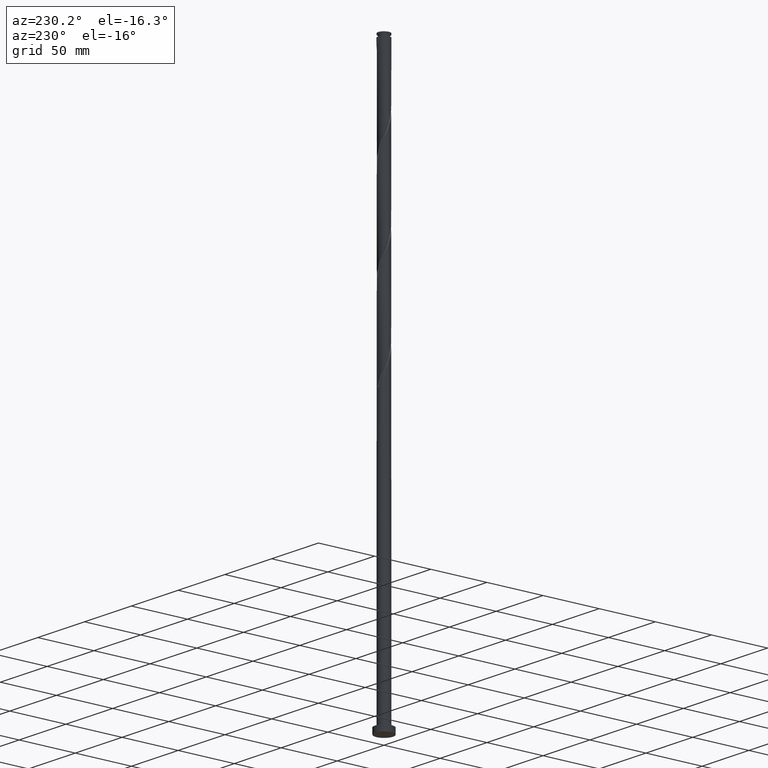
[diagram: clean part render]
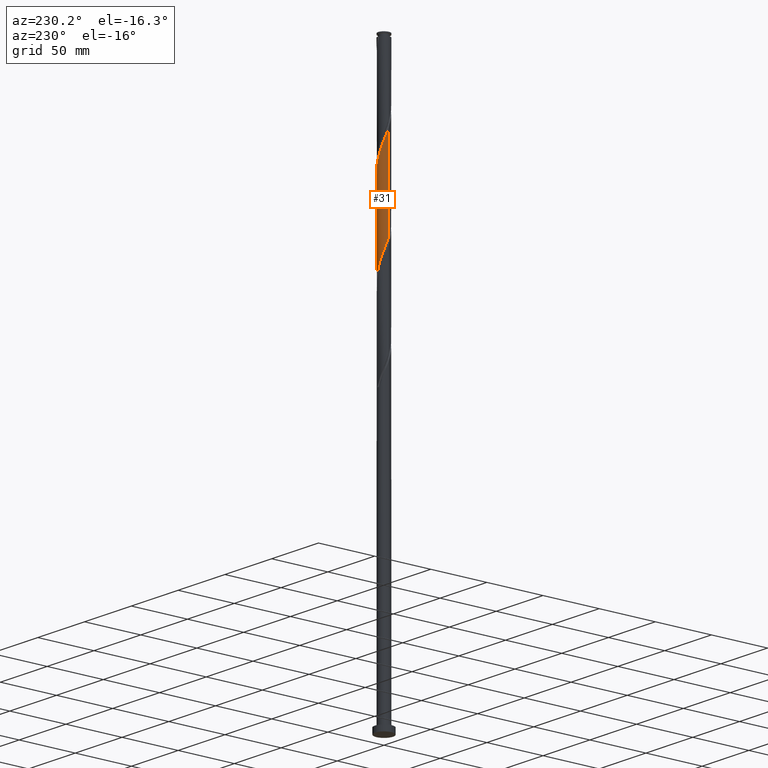
[diagram: same view with one face highlighted and labeled with its STEP entity id]
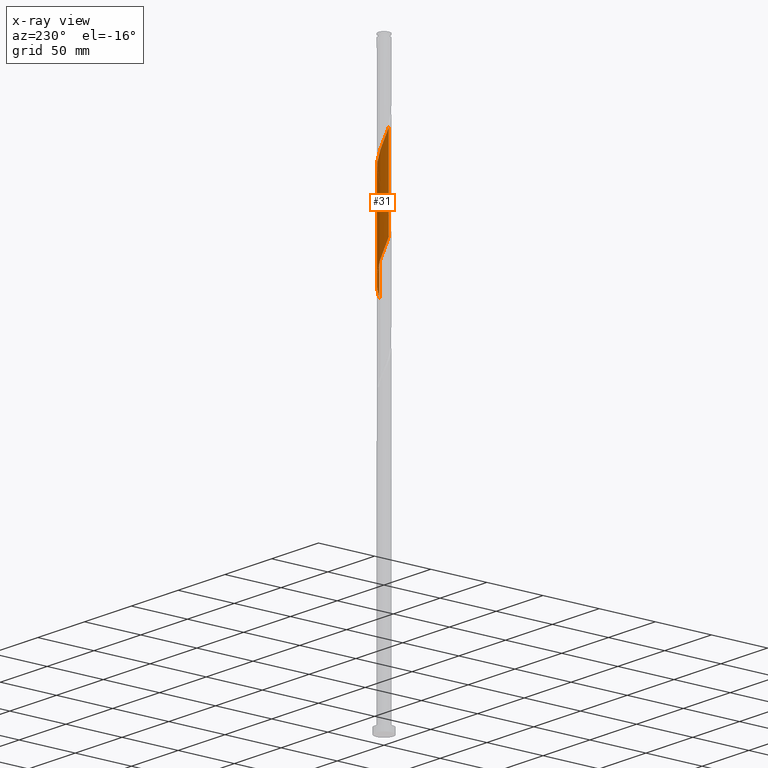
[diagram: x-ray of the same camera — body ghosted, the highlighted face saturated]
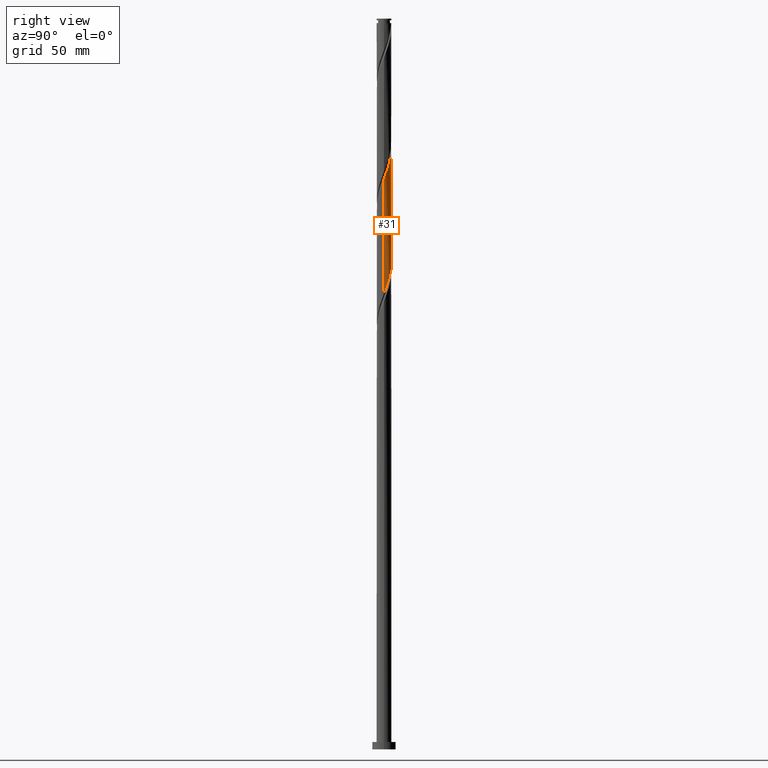
[diagram: same view with one face highlighted and labeled with its STEP entity id]
A machine part, auxiliary view. The second image highlights one B-rep face of the part: STEP entity #31.
The next image is the same camera in x-ray: the body ghosted, the highlighted face saturated — about 0% of this face is hidden behind the body in this view.
A second angle (right view) of the same face is appended — the face is thin or edge-on in the first view.
In plain terms, the highlighted cylindrical surface (edge-blend (fillet) strip) has radius 5.1 mm, axis along (-0, -0, -1).
Its self-contained STEP definition (entity closure, byte-faithful):
#4 = CARTESIAN_POINT ( 'NONE',  ( 4.719526232618723505, 1.932892169683482653, 317.2171342820045083 ) ) ;
#13 = CARTESIAN_POINT ( 'NONE',  ( 0.5226271518696500307, 5.097957663183446897, 331.5400509486711940 ) ) ;
#24 = CARTESIAN_POINT ( 'NONE',  ( 2.850285293774366568, 4.229169391747459095, 325.0296342820045083 ) ) ;
#31 = ADVANCED_FACE ( 'NONE', ( #980 ), #1615, .T. ) ;
#32 = CARTESIAN_POINT ( 'NONE',  ( -5.099999999999999645, 0.01016253220887840085, 353.7018110388170271 ) ) ;
#49 = VECTOR ( 'NONE', #1482, 1000.000000000000000 ) ;
#108 = EDGE_CURVE ( 'NONE', #1903, #2017, #1609, .T. ) ;
#114 = ORIENTED_EDGE ( 'NONE', *, *, #1116, .F. ) ;
#151 = EDGE_CURVE ( 'NONE', #1063, #1903, #530, .T. ) ;
#163 = CARTESIAN_POINT ( 'NONE',  ( 3.235247230719704437, 3.974353636958188218, 401.8525509486711940 ) ) ;
#174 = CARTESIAN_POINT ( 'NONE',  ( -5.100000000000001421, 0.000000000000000000, 500.0000000000000000 ) ) ;
#184 = CARTESIAN_POINT ( 'NONE',  ( 4.998000000000005549, 1.014887185848757145, 392.7379676153378227 ) ) ;
#190 = CARTESIAN_POINT ( 'NONE',  ( -4.509897990299586823, 2.433748465345991541, 347.1650509486711371 ) ) ;
#199 = CARTESIAN_POINT ( 'NONE',  ( 0.000000000000000000, 0.000000000000000000, 500.0000000000000000 ) ) ;
#206 =( BOUNDED_CURVE ( )  B_SPLINE_CURVE ( 2, ( #1487, #32, #1772, #213, #1795, #672, #1975, #190, #531, #1807, #521, #972, #1472, #1177, #1817, #351, #372, #990, #1605, #13, #1956, #851, #1496, #1480, #24, #650, #513, #1298, #1937, #1463, #4, #1308, #1185, #1841, #1031 ),
 .UNSPECIFIED., .F., .T. ) 
 B_SPLINE_CURVE_WITH_KNOTS ( ( 3, 2, 2, 2, 2, 2, 2, 2, 2, 2, 2, 2, 2, 2, 2, 2, 2, 3 ),
 ( 0.6795286902180894817, 0.6796875000000000000, 0.6875000000000000000, 0.6953125000000000000, 0.7031250000000000000, 0.7109375000000000000, 0.7187500000000000000, 0.7265625000000000000, 0.7343750000000000000, 0.7421875000000000000, 0.7500000000000000000, 0.7578125000000000000, 0.7656250000000000000, 0.7734375000000000000, 0.7812500000000000000, 0.7890625000000000000, 0.7968750000000000000, 0.8045286902180871502 ),
 .UNSPECIFIED. ) 
 CURVE ( )  GEOMETRIC_REPRESENTATION_ITEM ( )  RATIONAL_B_SPLINE_CURVE ( ( 0.9089165573359525574, 0.9090019243628562062, 0.9090909090909466972, 0.9047133878838528043, 0.9090909090909466972, 0.9047133878838528043, 0.9090909090909466972, 0.9047133878838528043, 0.9090909090909466972, 0.9047133878838528043, 0.9090909090909466972, 0.9047133878838528043, 0.9090909090909466972, 0.9047133878838528043, 0.9090909090909466972, 0.9047133878838528043, 0.9090909090909466972, 0.9047133878838528043, 0.9090909090909466972, 0.9047133878838528043, 0.9090909090909466972, 0.9047133878838528043, 0.9090909090909466972, 0.9047133878838528043, 0.9090909090909466972, 0.9047133878838528043, 0.9090909090909466972, 0.9047133878838528043, 0.9090909090909466972, 0.9047133878838528043, 0.9090909090909466972, 0.9047133878838528043, 0.9090909090909466972, 0.9048023726119447385, 0.9089165573359498929 ) ) 
 REPRESENTATION_ITEM ( '' )  );
#213 = CARTESIAN_POINT ( 'NONE',  ( -5.097957663183446897, 0.5226271518696499196, 352.3733842820045083 ) ) ;
#216 = ORIENTED_EDGE ( 'NONE', *, *, #108, .F. ) ;
#223 = CARTESIAN_POINT ( 'NONE',  ( 1.468059407851920684, 4.909899494948929188, 407.0608842820044515 ) ) ;
#233 = CARTESIAN_POINT ( 'NONE',  ( -4.909899494948929188, 1.468059407851920239, 427.8942176153377659 ) ) ;
#263 = VERTEX_POINT ( 'NONE', #1683 ) ;
#322 = CARTESIAN_POINT ( 'NONE',  ( 4.703970163558077289, 1.970447842586929843, 395.3421342820045083 ) ) ;
#344 = CARTESIAN_POINT ( 'NONE',  ( 5.097957663183454891, 0.5226271518696510299, 391.4358842820044515 ) ) ;
#351 = CARTESIAN_POINT ( 'NONE',  ( -1.468059407851916243, 4.909899494948922971, 336.7483842820044515 ) ) ;
#372 = CARTESIAN_POINT ( 'NONE',  ( -0.9750182961470735821, 5.005930415235359199, 335.4463009486710803 ) ) ;
#392 = CARTESIAN_POINT ( 'NONE',  ( -1.014887185848756701, 4.998000000000005549, 413.5713009486710803 ) ) ;
#402 = CARTESIAN_POINT ( 'NONE',  ( -0.5226271518696506968, 5.097957663183454891, 412.2692176153378227 ) ) ;
#513 = CARTESIAN_POINT ( 'NONE',  ( 3.620587879580457802, 3.591844011957518124, 322.4254676153378227 ) ) ;
#521 = CARTESIAN_POINT ( 'NONE',  ( -3.591844011957518124, 3.620587879580459134, 343.2588009486711940 ) ) ;
#523 = CARTESIAN_POINT ( 'NONE',  ( 0.4819771844422329754, 5.101961335521803420, 409.6650509486711371 ) ) ;
#530 =( BOUNDED_CURVE ( )  B_SPLINE_CURVE ( 2, ( #654, #2090, #1767, #344, #184, #1622, #322, #963, #1302, #1596, #1941, #163, #826, #1454, #2101, #223, #1515, #523, #1167, #402, #392, #1966, #1809, #1644, #1664, #701, #862, #709, #1355, #1674, #563, #233, #544, #1998, #1339 ),
 .UNSPECIFIED., .F., .T. ) 
 B_SPLINE_CURVE_WITH_KNOTS ( ( 3, 2, 2, 2, 2, 2, 2, 2, 2, 2, 2, 2, 2, 2, 2, 2, 2, 3 ),
 ( 0.4295286902180872057, 0.4296875000000000000, 0.4375000000000000000, 0.4453125000000000000, 0.4531250000000000000, 0.4609375000000000000, 0.4687500000000000000, 0.4765625000000000000, 0.4843750000000000000, 0.4921875000000000000, 0.5000000000000000000, 0.5078125000000000000, 0.5156250000000000000, 0.5234375000000000000, 0.5312500000000000000, 0.5390625000000000000, 0.5468750000000000000, 0.5545286902180874833 ),
 .UNSPECIFIED. ) 
 CURVE ( )  GEOMETRIC_REPRESENTATION_ITEM ( )  RATIONAL_B_SPLINE_CURVE ( ( 0.9089165573359566652, 0.9090019243628614243, 0.9090909090909532475, 0.9047133878838593546, 0.9090909090909532475, 0.9047133878838593546, 0.9090909090909532475, 0.9047133878838593546, 0.9090909090909532475, 0.9047133878838593546, 0.9090909090909532475, 0.9047133878838593546, 0.9090909090909532475, 0.9047133878838593546, 0.9090909090909532475, 0.9047133878838593546, 0.9090909090909532475, 0.9047133878838593546, 0.9090909090909532475, 0.9047133878838593546, 0.9090909090909532475, 0.9047133878838593546, 0.9090909090909532475, 0.9047133878838593546, 0.9090909090909532475, 0.9047133878838593546, 0.9090909090909532475, 0.9047133878838593546, 0.9090909090909532475, 0.9047133878838593546, 0.9090909090909532475, 0.9047133878838593546, 0.9090909090909532475, 0.9048023726119510668, 0.9089165573359568873 ) ) 
 REPRESENTATION_ITEM ( '' )  );
#531 = CARTESIAN_POINT ( 'NONE',  ( -4.229169391747461759, 2.850285293774363016, 345.8629676153378796 ) ) ;
#544 = CARTESIAN_POINT ( 'NONE',  ( -5.005930415235366304, 0.9750182961470761356, 429.1963009486710803 ) ) ;
#563 = CARTESIAN_POINT ( 'NONE',  ( -4.719526232618731498, 1.932892169683488426, 426.5921342820045083 ) ) ;
#588 = CARTESIAN_POINT ( 'NONE',  ( -5.100000000000010303, -2.355881046919246659E-15, 431.7477706373409774 ) ) ;
#650 = CARTESIAN_POINT ( 'NONE',  ( 3.266822122202736267, 3.948440793195335807, 323.7275509486711371 ) ) ;
#654 = CARTESIAN_POINT ( 'NONE',  ( 5.100000000000010303, -6.620323954633833192E-15, 390.0811039706741212 ) ) ;
#660 = CARTESIAN_POINT ( 'NONE',  ( 5.100000000000001421, 6.245698675651502811E-16, 500.0000000000000000 ) ) ;
#672 = CARTESIAN_POINT ( 'NONE',  ( -4.898042336816550879, 1.507147219827864371, 349.7692176153377659 ) ) ;
#701 = CARTESIAN_POINT ( 'NONE',  ( -3.266822122202741152, 3.948440793195344689, 420.0817176153377659 ) ) ;
#709 = CARTESIAN_POINT ( 'NONE',  ( -3.974353636958188218, 3.235247230719705769, 422.6858842820044515 ) ) ;
#826 = CARTESIAN_POINT ( 'NONE',  ( 2.816486081117381968, 4.251753303623358349, 403.1546342820044515 ) ) ;
#844 = DIRECTION ( 'NONE',  ( -0.000000000000000000, -0.000000000000000000, -1.000000000000000000 ) ) ;
#851 = CARTESIAN_POINT ( 'NONE',  ( 1.507147219827863038, 4.898042336816551767, 328.9358842820043947 ) ) ;
#862 = CARTESIAN_POINT ( 'NONE',  ( -3.620587879580464019, 3.591844011957525229, 421.3838009486710803 ) ) ;
#963 = CARTESIAN_POINT ( 'NONE',  ( 4.509897990299594817, 2.433748465345992873, 396.6442176153378796 ) ) ;
#972 = CARTESIAN_POINT ( 'NONE',  ( -3.235247230719698219, 3.974353636958182445, 341.9567176153377659 ) ) ;
#980 = FACE_OUTER_BOUND ( 'NONE', #1844, .T. ) ;
#990 = CARTESIAN_POINT ( 'NONE',  ( -0.4819771844422305884, 5.101961335521795426, 334.1442176153379364 ) ) ;
#1019 = CARTESIAN_POINT ( 'NONE',  ( -5.100000000000001421, 2.809183127157574852E-13, 353.7281645933339291 ) ) ;
#1028 = DIRECTION ( 'NONE',  ( -1.000000000000000000, 0.000000000000000000, 0.000000000000000000 ) ) ;
#1030 = AXIS2_PLACEMENT_3D ( 'NONE', #199, #1829, #1028 ) ;
#1031 = CARTESIAN_POINT ( 'NONE',  ( 5.100000000000002309, 3.671744986100435593E-15, 312.0614979266680393 ) ) ;
#1048 = EDGE_CURVE ( 'NONE', #1063, #263, #1336, .T. ) ;
#1063 = VERTEX_POINT ( 'NONE', #1630 ) ;
#1116 = EDGE_CURVE ( 'NONE', #2017, #263, #206, .T. ) ;
#1167 = CARTESIAN_POINT ( 'NONE',  ( -0.02032498371370645984, 5.099959499352630488, 410.9671342820044515 ) ) ;
#1177 = CARTESIAN_POINT ( 'NONE',  ( -2.397724931515051505, 4.529152970288524038, 339.3525509486710803 ) ) ;
#1185 = CARTESIAN_POINT ( 'NONE',  ( 5.005930415235359199, 0.9750182961470745813, 314.6129676153378227 ) ) ;
#1251 = ORIENTED_EDGE ( 'NONE', *, *, #1048, .T. ) ;
#1298 = CARTESIAN_POINT ( 'NONE',  ( 3.974353636958184222, 3.235247230719696443, 321.1233842820045083 ) ) ;
#1302 = CARTESIAN_POINT ( 'NONE',  ( 4.229169391747468865, 2.850285293774368345, 397.9463009486711940 ) ) ;
#1308 = CARTESIAN_POINT ( 'NONE',  ( 4.909899494948922971, 1.468059407851915577, 315.9150509486710803 ) ) ;
#1336 = LINE ( 'NONE', #660, #1599 ) ;
#1339 = CARTESIAN_POINT ( 'NONE',  ( -5.100000000000010303, -2.355881046919246659E-15, 431.7477706373409774 ) ) ;
#1355 = CARTESIAN_POINT ( 'NONE',  ( -4.251753303623358349, 2.816486081117381524, 423.9879676153378227 ) ) ;
#1454 = CARTESIAN_POINT ( 'NONE',  ( 2.397724931515060387, 4.529152970288527591, 404.4567176153377659 ) ) ;
#1463 = CARTESIAN_POINT ( 'NONE',  ( 4.529152970288523150, 2.397724931515053282, 318.5192176153378227 ) ) ;
#1472 = CARTESIAN_POINT ( 'NONE',  ( -2.816486081117375750, 4.251753303623353020, 340.6546342820043947 ) ) ;
#1480 = CARTESIAN_POINT ( 'NONE',  ( 2.433748465345991541, 4.509897990299585047, 326.3317176153379364 ) ) ;
#1482 = DIRECTION ( 'NONE',  ( -0.000000000000000000, -0.000000000000000000, -1.000000000000000000 ) ) ;
#1487 = CARTESIAN_POINT ( 'NONE',  ( -5.100000000000001421, 2.809183127157574852E-13, 353.7281645933339291 ) ) ;
#1496 = CARTESIAN_POINT ( 'NONE',  ( 1.970447842586929843, 4.703970163558069295, 327.6338009486711940 ) ) ;
#1515 = CARTESIAN_POINT ( 'NONE',  ( 0.9750182961470791332, 5.005930415235366304, 408.3629676153378227 ) ) ;
#1596 = CARTESIAN_POINT ( 'NONE',  ( 3.948440793195344689, 3.266822122202739820, 399.2483842820043947 ) ) ;
#1599 = VECTOR ( 'NONE', #844, 1000.000000000000000 ) ;
#1605 = CARTESIAN_POINT ( 'NONE',  ( 0.02032498371370980092, 5.099959499352621606, 332.8421342820044515 ) ) ;
#1609 = LINE ( 'NONE', #174, #49 ) ;
#1615 = CYLINDRICAL_SURFACE ( 'NONE', #1030, 5.100000000000001421 ) ;
#1622 = CARTESIAN_POINT ( 'NONE',  ( 4.898042336816559761, 1.507147219827863038, 394.0400509486711371 ) ) ;
#1630 = CARTESIAN_POINT ( 'NONE',  ( 5.100000000000010303, -6.620323954633833192E-15, 390.0811039706741781 ) ) ;
#1644 = CARTESIAN_POINT ( 'NONE',  ( -2.433748465345994205, 4.509897990299593040, 417.4775509486710803 ) ) ;
#1664 = CARTESIAN_POINT ( 'NONE',  ( -2.850285293774367457, 4.229169391747469753, 418.7796342820044515 ) ) ;
#1674 = CARTESIAN_POINT ( 'NONE',  ( -4.529152970288531144, 2.397724931515057278, 425.2900509486711371 ) ) ;
#1683 = CARTESIAN_POINT ( 'NONE',  ( 5.100000000000002309, 3.671744986100435593E-15, 312.0614979266680393 ) ) ;
#1767 = CARTESIAN_POINT ( 'NONE',  ( 5.099959499352630488, 0.02032498371370667495, 390.1338009486711371 ) ) ;
#1772 = CARTESIAN_POINT ( 'NONE',  ( -5.099959499352621606, 0.02032498371371001950, 353.6754676153378796 ) ) ;
#1795 = CARTESIAN_POINT ( 'NONE',  ( -4.998000000000001108, 1.014887185848757145, 351.0713009486711940 ) ) ;
#1807 = CARTESIAN_POINT ( 'NONE',  ( -3.948440793195336695, 3.266822122202736267, 344.5608842820044515 ) ) ;
#1809 = CARTESIAN_POINT ( 'NONE',  ( -1.970447842586929621, 4.703970163558077289, 416.1754676153377659 ) ) ;
#1817 = CARTESIAN_POINT ( 'NONE',  ( -1.932892169683484429, 4.719526232618722617, 338.0504676153377659 ) ) ;
#1829 = DIRECTION ( 'NONE',  ( -0.000000000000000000, -0.000000000000000000, -1.000000000000000000 ) ) ;
#1841 = CARTESIAN_POINT ( 'NONE',  ( 5.099999999999999645, 0.4920470561378060270, 313.3374780320839363 ) ) ;
#1844 = EDGE_LOOP ( 'NONE', ( #2063, #1251, #114, #216 ) ) ;
#1903 = VERTEX_POINT ( 'NONE', #588 ) ;
#1937 = CARTESIAN_POINT ( 'NONE',  ( 4.251753303623353020, 2.816486081117374418, 319.8213009486712508 ) ) ;
#1941 = CARTESIAN_POINT ( 'NONE',  ( 3.591844011957526117, 3.620587879580462687, 400.5504676153379364 ) ) ;
#1956 = CARTESIAN_POINT ( 'NONE',  ( 1.014887185848758255, 4.998000000000001108, 330.2379676153378796 ) ) ;
#1966 = CARTESIAN_POINT ( 'NONE',  ( -1.507147219827865703, 4.898042336816559761, 414.8733842820044515 ) ) ;
#1975 = CARTESIAN_POINT ( 'NONE',  ( -4.703970163558070183, 1.970447842586927845, 348.4671342820045652 ) ) ;
#1998 = CARTESIAN_POINT ( 'NONE',  ( -5.100000000000011191, 0.4920470561377878749, 430.4717905319249098 ) ) ;
#2017 = VERTEX_POINT ( 'NONE', #1019 ) ;
#2063 = ORIENTED_EDGE ( 'NONE', *, *, #151, .F. ) ;
#2090 = CARTESIAN_POINT ( 'NONE',  ( 5.100000000000011191, 0.01016253220872941065, 390.1074575251915348 ) ) ;
#2101 = CARTESIAN_POINT ( 'NONE',  ( 1.932892169683488426, 4.719526232618731498, 405.7588009486710803 ) ) ;